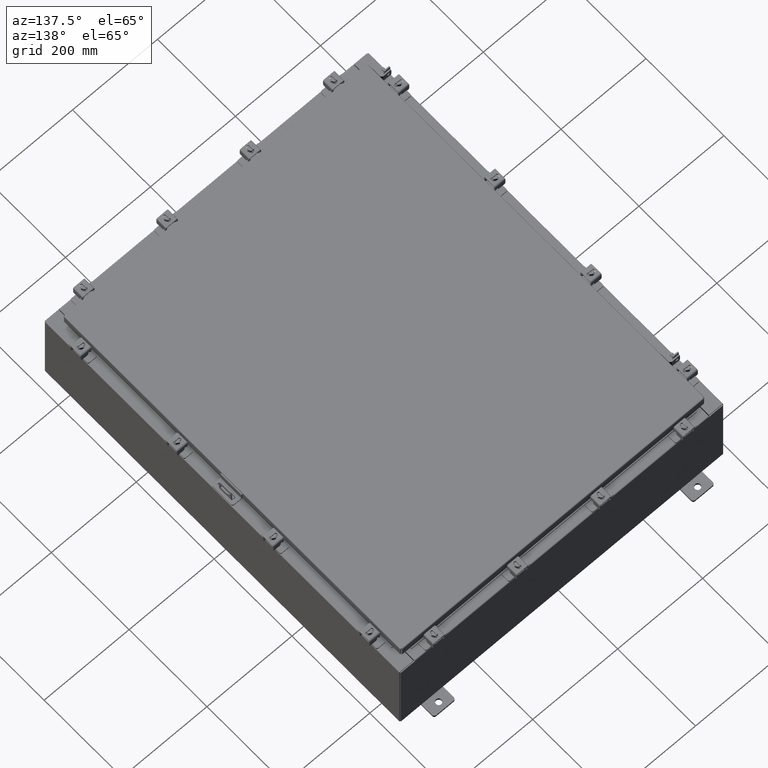
[diagram: clean part render]
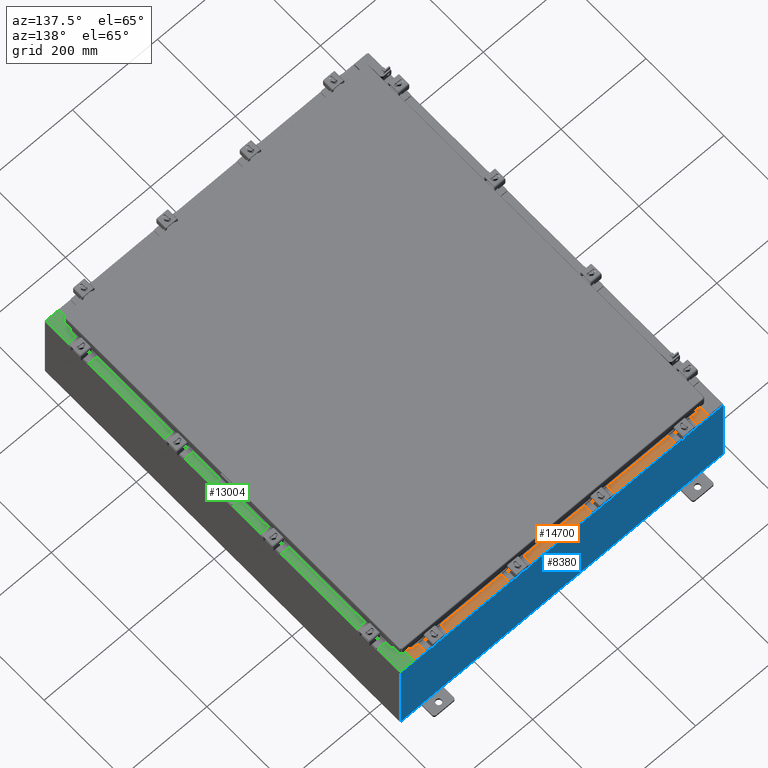
[diagram: same view with three faces highlighted in distinct colors, each labeled with its STEP entity id]
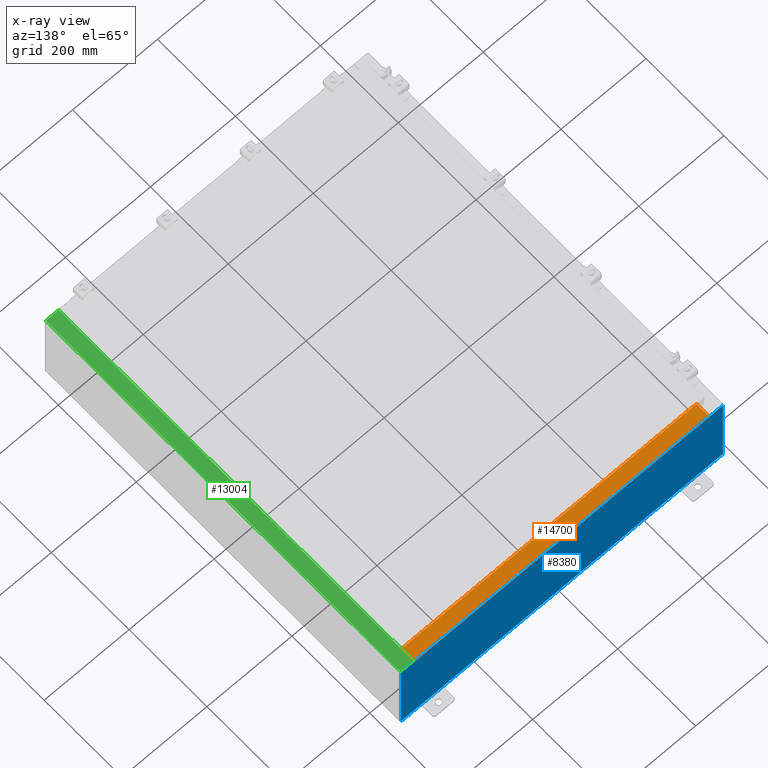
[diagram: x-ray of the same camera — body ghosted, the three highlighted faces saturated]
A machine part, auxiliary view with three faces highlighted in distinct colors.
The next image is the same camera in x-ray (body ghosted, the three faces saturated) — at least one of them is partly hidden behind the body in this view.
Their STEP definitions:

[orange] entity #14700 — the highlighted planar face has unit normal (0, 0, 1).
#205 = EDGE_CURVE ( 'NONE', #2254, #19719, #22961, .T. ) ;
#1309 = CARTESIAN_POINT ( 'NONE',  ( -13.63719999999999800, -0.08770000000000026400, 4.000000000000000900 ) ) ;
#1908 = CARTESIAN_POINT ( 'NONE',  ( -1.756834736719231400E-018, -0.08770000000000026400, 4.000000000000000900 ) ) ;
#2254 = VERTEX_POINT ( 'NONE', #20304 ) ;
#2320 = EDGE_CURVE ( 'NONE', #22832, #23010, #18137, .T. ) ;
#2524 = CARTESIAN_POINT ( 'NONE',  ( 13.63720000000000400, -1.287299999999999200, 4.000000000000002700 ) ) ;
#3086 = VECTOR ( 'NONE', #16081, 39.37007874015748100 ) ;
#4994 = VECTOR ( 'NONE', #15070, 39.37007874015748100 ) ;
#5975 = DIRECTION ( 'NONE',  ( -0.0000000000000000000, 1.000000000000000000, -3.566381192773190000E-015 ) ) ;
#6454 = EDGE_LOOP ( 'NONE', ( #22024, #14609, #7435, #14364 ) ) ;
#7395 = PLANE ( 'NONE',  #14647 ) ;
#7414 = CARTESIAN_POINT ( 'NONE',  ( 13.63720000000000400, -1.287299999999999200, 4.000000000000004400 ) ) ;
#7435 = ORIENTED_EDGE ( 'NONE', *, *, #2320, .F. ) ;
#7716 = EDGE_CURVE ( 'NONE', #23010, #2254, #17054, .T. ) ;
#7965 = CARTESIAN_POINT ( 'NONE',  ( 13.63720000000000400, -1.300299999999999300, 4.000000000000004400 ) ) ;
#9293 = DIRECTION ( 'NONE',  ( 0.0000000000000000000, -1.000000000000000000, 3.566381192773190000E-015 ) ) ;
#10015 = LINE ( 'NONE', #1908, #4994 ) ;
#12040 = VECTOR ( 'NONE', #19625, 39.37007874015748100 ) ;
#12883 = VECTOR ( 'NONE', #5975, 39.37007874015748100 ) ;
#14094 = CARTESIAN_POINT ( 'NONE',  ( -13.63719999999999800, -0.07470000000000015500, 4.000000000000000900 ) ) ;
#14364 = ORIENTED_EDGE ( 'NONE', *, *, #21053, .T. ) ;
#14609 = ORIENTED_EDGE ( 'NONE', *, *, #7716, .F. ) ;
#14647 = AXIS2_PLACEMENT_3D ( 'NONE', #18643, #20651, #9293 ) ;
#14700 = ADVANCED_FACE ( 'NONE', ( #21234 ), #7395, .T. ) ;
#15070 = DIRECTION ( 'NONE',  ( -1.000000000000000000, 2.003232330437526000E-017, -7.144290108027600900E-032 ) ) ;
#16081 = DIRECTION ( 'NONE',  ( -0.0000000000000000000, -1.000000000000000000, 3.566381192773190000E-015 ) ) ;
#17054 = LINE ( 'NONE', #2524, #12040 ) ;
#18137 = LINE ( 'NONE', #7965, #3086 ) ;
#18321 = CARTESIAN_POINT ( 'NONE',  ( 13.63720000000000400, -0.08770000000000026400, 4.000000000000000900 ) ) ;
#18643 = CARTESIAN_POINT ( 'NONE',  ( 0.0000000000000000000, 1.529834876451987200E-014, 4.000000000000000900 ) ) ;
#19625 = DIRECTION ( 'NONE',  ( -1.000000000000000000, 0.0000000000000000000, 0.0000000000000000000 ) ) ;
#19719 = VERTEX_POINT ( 'NONE', #1309 ) ;
#20304 = CARTESIAN_POINT ( 'NONE',  ( -13.63719999999999800, -1.287299999999999200, 4.000000000000004400 ) ) ;
#20651 = DIRECTION ( 'NONE',  ( 0.0000000000000000000, 3.566381192773190000E-015, 1.000000000000000000 ) ) ;
#21053 = EDGE_CURVE ( 'NONE', #22832, #19719, #10015, .T. ) ;
#21234 = FACE_OUTER_BOUND ( 'NONE', #6454, .T. ) ;
#22024 = ORIENTED_EDGE ( 'NONE', *, *, #205, .F. ) ;
#22832 = VERTEX_POINT ( 'NONE', #18321 ) ;
#22961 = LINE ( 'NONE', #14094, #12883 ) ;
#23010 = VERTEX_POINT ( 'NONE', #7414 ) ;

[blue] entity #8380 — the highlighted planar face has unit normal (0, -1, 0).
#523 = AXIS2_PLACEMENT_3D ( 'NONE', #18483, #20407, #9062 ) ;
#631 = VECTOR ( 'NONE', #6756, 39.37007874015748100 ) ;
#821 = VERTEX_POINT ( 'NONE', #20795 ) ;
#826 = LINE ( 'NONE', #8136, #20338 ) ;
#887 = EDGE_CURVE ( 'NONE', #20898, #1702, #18779, .T. ) ;
#943 = ORIENTED_EDGE ( 'NONE', *, *, #17899, .F. ) ;
#1151 = LINE ( 'NONE', #18752, #10583 ) ;
#1324 = EDGE_CURVE ( 'NONE', #5445, #13291, #20553, .T. ) ;
#1403 = LINE ( 'NONE', #3049, #11427 ) ;
#1702 = VERTEX_POINT ( 'NONE', #17704 ) ;
#2453 = VERTEX_POINT ( 'NONE', #21307 ) ;
#2896 = EDGE_CURVE ( 'NONE', #21639, #5610, #6292, .T. ) ;
#2999 = EDGE_CURVE ( 'NONE', #7224, #21639, #19604, .T. ) ;
#3032 = CARTESIAN_POINT ( 'NONE',  ( -14.92529999999999800, 0.0000000000000000000, 3.925300000000000500 ) ) ;
#3049 = CARTESIAN_POINT ( 'NONE',  ( -14.92529999999999800, 0.0000000000000000000, 3.925300000000000500 ) ) ;
#3102 = AXIS2_PLACEMENT_3D ( 'NONE', #16916, #5618, #18855 ) ;
#3135 = CARTESIAN_POINT ( 'NONE',  ( -14.92529999999999800, 0.0000000000000000000, -3.925299999999999600 ) ) ;
#3811 = LINE ( 'NONE', #3135, #22756 ) ;
#4109 = DIRECTION ( 'NONE',  ( -4.340572780400004900E-014, 0.0000000000000000000, -1.000000000000000000 ) ) ;
#4791 = EDGE_CURVE ( 'NONE', #20898, #2453, #12714, .T. ) ;
#4859 = AXIS2_PLACEMENT_3D ( 'NONE', #16407, #5113, #12059 ) ;
#4959 = VERTEX_POINT ( 'NONE', #21006 ) ;
#5096 = CARTESIAN_POINT ( 'NONE',  ( -13.63719999999999600, 0.0000000000000000000, 3.912300000000000100 ) ) ;
#5113 = DIRECTION ( 'NONE',  ( -0.0000000000000000000, 1.000000000000000000, -0.0000000000000000000 ) ) ;
#5246 = EDGE_CURVE ( 'NONE', #18063, #4959, #6224, .T. ) ;
#5445 = VERTEX_POINT ( 'NONE', #11037 ) ;
#5516 = VERTEX_POINT ( 'NONE', #13090 ) ;
#5610 = VERTEX_POINT ( 'NONE', #22862 ) ;
#5618 = DIRECTION ( 'NONE',  ( -0.0000000000000000000, 1.000000000000000000, -0.0000000000000000000 ) ) ;
#6224 = LINE ( 'NONE', #3032, #631 ) ;
#6292 = CIRCLE ( 'NONE', #4859, 0.01867499999999949400 ) ;
#6597 = ORIENTED_EDGE ( 'NONE', *, *, #15036, .T. ) ;
#6756 = DIRECTION ( 'NONE',  ( 1.000000000000000000, 0.0000000000000000000, 0.0000000000000000000 ) ) ;
#6978 = DIRECTION ( 'NONE',  ( 0.0000000000000000000, 0.0000000000000000000, 1.000000000000000000 ) ) ;
#7224 = VERTEX_POINT ( 'NONE', #5096 ) ;
#8136 = CARTESIAN_POINT ( 'NONE',  ( -13.63719999999999800, 0.0000000000000000000, 3.912300000000000100 ) ) ;
#8380 = ADVANCED_FACE ( 'NONE', ( #19127 ), #22218, .F. ) ;
#8506 = ORIENTED_EDGE ( 'NONE', *, *, #13327, .F. ) ;
#8700 = VECTOR ( 'NONE', #4109, 39.37007874015748100 ) ;
#8727 = DIRECTION ( 'NONE',  ( -1.000000000000000000, -0.0000000000000000000, -0.0000000000000000000 ) ) ;
#9062 = DIRECTION ( 'NONE',  ( 0.0000000000000000000, -0.0000000000000000000, -1.000000000000000000 ) ) ;
#9832 = ORIENTED_EDGE ( 'NONE', *, *, #4791, .T. ) ;
#10347 = ORIENTED_EDGE ( 'NONE', *, *, #14139, .T. ) ;
#10583 = VECTOR ( 'NONE', #16813, 39.37007874015748100 ) ;
#11037 = CARTESIAN_POINT ( 'NONE',  ( 13.63720000000000400, 0.0000000000000000000, 3.874949999999999200 ) ) ;
#11101 = CARTESIAN_POINT ( 'NONE',  ( -13.63719999999999600, 0.0000000000000000000, 3.874949999999999200 ) ) ;
#11427 = VECTOR ( 'NONE', #20087, 39.37007874015748100 ) ;
#11757 = DIRECTION ( 'NONE',  ( 0.0000000000000000000, 0.0000000000000000000, -1.000000000000000000 ) ) ;
#12059 = DIRECTION ( 'NONE',  ( 0.0000000000000000000, 0.0000000000000000000, -1.000000000000000000 ) ) ;
#12113 = CARTESIAN_POINT ( 'NONE',  ( 13.67454999999983300, 0.0000000000000000000, -5.933573842238779900E-013 ) ) ;
#12714 = LINE ( 'NONE', #23085, #17144 ) ;
#13090 = CARTESIAN_POINT ( 'NONE',  ( 14.92530000000000200, 0.0000000000000000000, -3.925299999999999600 ) ) ;
#13111 = ORIENTED_EDGE ( 'NONE', *, *, #5246, .T. ) ;
#13291 = VERTEX_POINT ( 'NONE', #14943 ) ;
#13327 = EDGE_CURVE ( 'NONE', #1702, #5445, #17695, .T. ) ;
#13818 = EDGE_CURVE ( 'NONE', #5516, #821, #3811, .T. ) ;
#14027 = CARTESIAN_POINT ( 'NONE',  ( -13.63719999999999600, 0.0000000000000000000, 0.0000000000000000000 ) ) ;
#14139 = EDGE_CURVE ( 'NONE', #2453, #5516, #1151, .T. ) ;
#14168 = DIRECTION ( 'NONE',  ( 0.0000000000000000000, 0.0000000000000000000, 1.000000000000000000 ) ) ;
#14543 = VECTOR ( 'NONE', #11757, 39.37007874015748100 ) ;
#14573 = CARTESIAN_POINT ( 'NONE',  ( 13.67455000000000400, 0.0000000000000000000, 3.925300000000000500 ) ) ;
#14943 = CARTESIAN_POINT ( 'NONE',  ( 13.63720000000000400, 0.0000000000000000000, 3.912300000000000100 ) ) ;
#15036 = EDGE_CURVE ( 'NONE', #7224, #13291, #826, .T. ) ;
#15473 = VECTOR ( 'NONE', #14168, 39.37007874015748100 ) ;
#15940 = ORIENTED_EDGE ( 'NONE', *, *, #13818, .T. ) ;
#16407 = CARTESIAN_POINT ( 'NONE',  ( -13.65587499999999600, 0.0000000000000000000, 3.874949999999999200 ) ) ;
#16411 = CARTESIAN_POINT ( 'NONE',  ( 13.63720000000000400, 0.0000000000000000000, 0.0000000000000000000 ) ) ;
#16813 = DIRECTION ( 'NONE',  ( 0.0000000000000000000, 0.0000000000000000000, -1.000000000000000000 ) ) ;
#16916 = CARTESIAN_POINT ( 'NONE',  ( 13.65587500000000200, 0.0000000000000000000, 3.874949999999999200 ) ) ;
#17144 = VECTOR ( 'NONE', #23248, 39.37007874015748100 ) ;
#17214 = VECTOR ( 'NONE', #6978, 39.37007874015748100 ) ;
#17432 = ORIENTED_EDGE ( 'NONE', *, *, #1324, .F. ) ;
#17609 = DIRECTION ( 'NONE',  ( 1.000000000000000000, 0.0000000000000000000, 0.0000000000000000000 ) ) ;
#17695 = CIRCLE ( 'NONE', #3102, 0.01867499999999949400 ) ;
#17704 = CARTESIAN_POINT ( 'NONE',  ( 13.67455000000000200, 0.0000000000000000000, 3.874949999999999200 ) ) ;
#17899 = EDGE_CURVE ( 'NONE', #5610, #4959, #24045, .T. ) ;
#18063 = VERTEX_POINT ( 'NONE', #20634 ) ;
#18286 = CARTESIAN_POINT ( 'NONE',  ( -13.67454999999999500, 0.0000000000000000000, 0.0000000000000000000 ) ) ;
#18483 = CARTESIAN_POINT ( 'NONE',  ( 0.0000000000000000000, 0.0000000000000000000, 0.0000000000000000000 ) ) ;
#18752 = CARTESIAN_POINT ( 'NONE',  ( 14.92530000000000200, 0.0000000000000000000, 3.925300000000000500 ) ) ;
#18779 = LINE ( 'NONE', #12113, #8700 ) ;
#18785 = ORIENTED_EDGE ( 'NONE', *, *, #22808, .T. ) ;
#18855 = DIRECTION ( 'NONE',  ( 0.0000000000000000000, 0.0000000000000000000, -1.000000000000000000 ) ) ;
#19127 = FACE_OUTER_BOUND ( 'NONE', #19850, .T. ) ;
#19604 = LINE ( 'NONE', #14027, #14543 ) ;
#19850 = EDGE_LOOP ( 'NONE', ( #943, #22386, #22129, #6597, #17432, #8506, #23545, #9832, #10347, #15940, #18785, #13111 ) ) ;
#20087 = DIRECTION ( 'NONE',  ( -0.0000000000000000000, -0.0000000000000000000, 1.000000000000000000 ) ) ;
#20338 = VECTOR ( 'NONE', #17609, 39.37007874015748100 ) ;
#20407 = DIRECTION ( 'NONE',  ( 0.0000000000000000000, -1.000000000000000000, 0.0000000000000000000 ) ) ;
#20553 = LINE ( 'NONE', #16411, #15473 ) ;
#20634 = CARTESIAN_POINT ( 'NONE',  ( -14.92529999999999800, 0.0000000000000000000, 3.925300000000000500 ) ) ;
#20795 = CARTESIAN_POINT ( 'NONE',  ( -14.92529999999999800, 0.0000000000000000000, -3.925299999999999600 ) ) ;
#20898 = VERTEX_POINT ( 'NONE', #14573 ) ;
#21006 = CARTESIAN_POINT ( 'NONE',  ( -13.67454999999999500, 0.0000000000000000000, 3.925300000000000500 ) ) ;
#21307 = CARTESIAN_POINT ( 'NONE',  ( 14.92530000000000200, 0.0000000000000000000, 3.925300000000000500 ) ) ;
#21639 = VERTEX_POINT ( 'NONE', #11101 ) ;
#22129 = ORIENTED_EDGE ( 'NONE', *, *, #2999, .F. ) ;
#22218 = PLANE ( 'NONE',  #523 ) ;
#22386 = ORIENTED_EDGE ( 'NONE', *, *, #2896, .F. ) ;
#22756 = VECTOR ( 'NONE', #8727, 39.37007874015748100 ) ;
#22808 = EDGE_CURVE ( 'NONE', #821, #18063, #1403, .T. ) ;
#22862 = CARTESIAN_POINT ( 'NONE',  ( -13.67454999999999500, 0.0000000000000000000, 3.874949999999999200 ) ) ;
#23085 = CARTESIAN_POINT ( 'NONE',  ( -14.92529999999999800, 0.0000000000000000000, 3.925300000000000500 ) ) ;
#23248 = DIRECTION ( 'NONE',  ( 1.000000000000000000, 0.0000000000000000000, 0.0000000000000000000 ) ) ;
#23545 = ORIENTED_EDGE ( 'NONE', *, *, #887, .F. ) ;
#24045 = LINE ( 'NONE', #18286, #17214 ) ;

[green] entity #13004 — the highlighted planar face has unit normal (-0, 0, -1).
#736 = LINE ( 'NONE', #23029, #10757 ) ;
#860 = LINE ( 'NONE', #14488, #5262 ) ;
#902 = DIRECTION ( 'NONE',  ( -2.156899250920150100E-031, -1.000000000000000000, 1.346156861557936900E-045 ) ) ;
#915 = CARTESIAN_POINT ( 'NONE',  ( 14.91230000000002700, -17.92530000000000000, 7.925300000000000000 ) ) ;
#980 = ORIENTED_EDGE ( 'NONE', *, *, #1653, .T. ) ;
#1120 = VECTOR ( 'NONE', #1962, 39.37007874015748100 ) ;
#1415 = DIRECTION ( 'NONE',  ( 1.000000000000000000, 0.0000000000000000000, 0.0000000000000000000 ) ) ;
#1453 = CARTESIAN_POINT ( 'NONE',  ( 13.69970000000002800, -16.63110000000000400, 7.925300000000008900 ) ) ;
#1653 = EDGE_CURVE ( 'NONE', #24290, #2774, #5480, .T. ) ;
#1962 = DIRECTION ( 'NONE',  ( -1.000000000000000000, 0.0000000000000000000, 0.0000000000000000000 ) ) ;
#2454 = EDGE_CURVE ( 'NONE', #6882, #14379, #4524, .T. ) ;
#2649 = DIRECTION ( 'NONE',  ( -1.000000000000000000, 0.0000000000000000000, 6.241167087353087800E-015 ) ) ;
#2770 = ORIENTED_EDGE ( 'NONE', *, *, #15350, .F. ) ;
#2774 = VERTEX_POINT ( 'NONE', #23398 ) ;
#3251 = LINE ( 'NONE', #9915, #9453 ) ;
#3256 = DIRECTION ( 'NONE',  ( 1.000000000000000000, 4.340572780399910900E-014, 0.0000000000000000000 ) ) ;
#3267 = DIRECTION ( 'NONE',  ( 6.241167087353086200E-015, 0.0000000000000000000, 1.000000000000000000 ) ) ;
#4381 = CARTESIAN_POINT ( 'NONE',  ( 4.972393517345230000E-014, 0.0000000000000000000, 7.925300000000092400 ) ) ;
#4524 = LINE ( 'NONE', #18546, #24076 ) ;
#4527 = CARTESIAN_POINT ( 'NONE',  ( 4.972393517345230000E-014, 17.92530000000000000, 7.925300000000092400 ) ) ;
#4787 = EDGE_LOOP ( 'NONE', ( #2770, #980, #7003, #22370, #7844, #8167, #6544, #20679, #24262, #12823, #9192, #15300 ) ) ;
#5262 = VECTOR ( 'NONE', #1415, 39.37007874015748100 ) ;
#5480 = LINE ( 'NONE', #16775, #19980 ) ;
#5599 = CARTESIAN_POINT ( 'NONE',  ( 13.69970000000002800, 17.92530000000000000, 7.925300000000007100 ) ) ;
#5979 = CARTESIAN_POINT ( 'NONE',  ( 4.972393517345230000E-014, -17.92530000000000000, 7.925300000000092400 ) ) ;
#6068 = DIRECTION ( 'NONE',  ( 1.000000000000000000, 2.717614574405843200E-032, -6.241167087353087800E-015 ) ) ;
#6105 = DIRECTION ( 'NONE',  ( -0.0000000000000000000, 1.000000000000000000, -0.0000000000000000000 ) ) ;
#6264 = CARTESIAN_POINT ( 'NONE',  ( 13.71270000000003000, 16.59375000000000000, 7.925300000000008900 ) ) ;
#6369 = DIRECTION ( 'NONE',  ( -1.000000000000000000, 0.0000000000000000000, 6.241167087353086200E-015 ) ) ;
#6466 = CARTESIAN_POINT ( 'NONE',  ( 13.75005000000002800, -16.59375000000000000, 7.925300000000006200 ) ) ;
#6544 = ORIENTED_EDGE ( 'NONE', *, *, #24422, .F. ) ;
#6882 = VERTEX_POINT ( 'NONE', #7933 ) ;
#7003 = ORIENTED_EDGE ( 'NONE', *, *, #14924, .T. ) ;
#7237 = EDGE_CURVE ( 'NONE', #20618, #10777, #860, .T. ) ;
#7608 = VECTOR ( 'NONE', #6068, 39.37007874015748100 ) ;
#7758 = DIRECTION ( 'NONE',  ( 6.241167087353086200E-015, 0.0000000000000000000, 1.000000000000000000 ) ) ;
#7844 = ORIENTED_EDGE ( 'NONE', *, *, #15748, .T. ) ;
#7933 = CARTESIAN_POINT ( 'NONE',  ( 14.91230000000002700, 17.92530000000000000, 7.925300000000000000 ) ) ;
#8060 = EDGE_CURVE ( 'NONE', #8819, #13762, #21217, .T. ) ;
#8167 = ORIENTED_EDGE ( 'NONE', *, *, #12332, .T. ) ;
#8819 = VERTEX_POINT ( 'NONE', #6466 ) ;
#9108 = AXIS2_PLACEMENT_3D ( 'NONE', #14550, #3267, #16457 ) ;
#9192 = ORIENTED_EDGE ( 'NONE', *, *, #8060, .F. ) ;
#9222 = VECTOR ( 'NONE', #902, 39.37007874015748100 ) ;
#9453 = VECTOR ( 'NONE', #6105, 39.37007874015748100 ) ;
#9896 = AXIS2_PLACEMENT_3D ( 'NONE', #4381, #17675, #6369 ) ;
#9915 = CARTESIAN_POINT ( 'NONE',  ( 13.71270000000003000, -16.59375000000000000, 7.925300000000008900 ) ) ;
#10757 = VECTOR ( 'NONE', #11610, 39.37007874015748100 ) ;
#10777 = VERTEX_POINT ( 'NONE', #23760 ) ;
#11115 = LINE ( 'NONE', #4527, #20598 ) ;
#11335 = CARTESIAN_POINT ( 'NONE',  ( 13.75005000000002800, -16.59375000000000000, 7.925300000000008900 ) ) ;
#11467 = VERTEX_POINT ( 'NONE', #14844 ) ;
#11610 = DIRECTION ( 'NONE',  ( -1.000000000000000000, 4.340572780399910900E-014, 0.0000000000000000000 ) ) ;
#11730 = CARTESIAN_POINT ( 'NONE',  ( 13.69970000000002800, 16.63110000000000400, 7.925300000000007100 ) ) ;
#12332 = EDGE_CURVE ( 'NONE', #19365, #20568, #13633, .T. ) ;
#12453 = CIRCLE ( 'NONE', #18592, 0.01867499999999949400 ) ;
#12625 = DIRECTION ( 'NONE',  ( -0.0000000000000000000, -1.000000000000000000, -0.0000000000000000000 ) ) ;
#12823 = ORIENTED_EDGE ( 'NONE', *, *, #20580, .F. ) ;
#13004 = ADVANCED_FACE ( 'NONE', ( #23080 ), #15778, .F. ) ;
#13330 = CARTESIAN_POINT ( 'NONE',  ( 13.69970000000002800, -16.63110000000000400, 7.925300000000007100 ) ) ;
#13542 = CARTESIAN_POINT ( 'NONE',  ( 13.75005000000002800, 16.63110000000000000, 7.925300000000006200 ) ) ;
#13576 = CIRCLE ( 'NONE', #9108, 0.01867499999999949400 ) ;
#13633 = LINE ( 'NONE', #23531, #9222 ) ;
#13762 = VERTEX_POINT ( 'NONE', #23795 ) ;
#13763 = VECTOR ( 'NONE', #3256, 39.37007874015748100 ) ;
#14379 = VERTEX_POINT ( 'NONE', #915 ) ;
#14488 = CARTESIAN_POINT ( 'NONE',  ( 13.71270000000003000, 16.59375000000000000, 7.925300000000008900 ) ) ;
#14550 = CARTESIAN_POINT ( 'NONE',  ( 13.75005000000002800, 16.61242500000000200, 7.925300000000008900 ) ) ;
#14844 = CARTESIAN_POINT ( 'NONE',  ( 13.75005000000002800, -16.63110000000000000, 7.925300000000006200 ) ) ;
#14924 = EDGE_CURVE ( 'NONE', #2774, #14379, #23290, .T. ) ;
#15300 = ORIENTED_EDGE ( 'NONE', *, *, #18864, .F. ) ;
#15350 = EDGE_CURVE ( 'NONE', #24290, #11467, #24474, .T. ) ;
#15748 = EDGE_CURVE ( 'NONE', #6882, #19365, #11115, .T. ) ;
#15778 = PLANE ( 'NONE',  #9896 ) ;
#16457 = DIRECTION ( 'NONE',  ( 1.000000000000000000, 0.0000000000000000000, 0.0000000000000000000 ) ) ;
#16775 = CARTESIAN_POINT ( 'NONE',  ( 13.69970000000002800, 0.0000000000000000000, 7.925300000000007100 ) ) ;
#17675 = DIRECTION ( 'NONE',  ( -6.241167087353086200E-015, 0.0000000000000000000, -1.000000000000000000 ) ) ;
#17931 = DIRECTION ( 'NONE',  ( -2.156899250920150100E-031, -1.000000000000000000, 1.346156861557936900E-045 ) ) ;
#18262 = VERTEX_POINT ( 'NONE', #13542 ) ;
#18546 = CARTESIAN_POINT ( 'NONE',  ( 14.91230000000002700, -17.92530000000000000, 7.925300000000000000 ) ) ;
#18592 = AXIS2_PLACEMENT_3D ( 'NONE', #19097, #7758, #21007 ) ;
#18864 = EDGE_CURVE ( 'NONE', #11467, #8819, #12453, .T. ) ;
#19097 = CARTESIAN_POINT ( 'NONE',  ( 13.75005000000002800, -16.61242500000000200, 7.925300000000008900 ) ) ;
#19365 = VERTEX_POINT ( 'NONE', #5599 ) ;
#19728 = EDGE_CURVE ( 'NONE', #10777, #18262, #13576, .T. ) ;
#19980 = VECTOR ( 'NONE', #17931, 39.37007874015748100 ) ;
#20568 = VERTEX_POINT ( 'NONE', #11730 ) ;
#20580 = EDGE_CURVE ( 'NONE', #13762, #20618, #3251, .T. ) ;
#20598 = VECTOR ( 'NONE', #2649, 39.37007874015748100 ) ;
#20618 = VERTEX_POINT ( 'NONE', #6264 ) ;
#20679 = ORIENTED_EDGE ( 'NONE', *, *, #19728, .F. ) ;
#21007 = DIRECTION ( 'NONE',  ( 1.000000000000000000, 0.0000000000000000000, 0.0000000000000000000 ) ) ;
#21217 = LINE ( 'NONE', #11335, #1120 ) ;
#22370 = ORIENTED_EDGE ( 'NONE', *, *, #2454, .F. ) ;
#23029 = CARTESIAN_POINT ( 'NONE',  ( 13.75005000000002800, 16.63110000000000000, 7.925300000000008900 ) ) ;
#23080 = FACE_OUTER_BOUND ( 'NONE', #4787, .T. ) ;
#23290 = LINE ( 'NONE', #5979, #7608 ) ;
#23398 = CARTESIAN_POINT ( 'NONE',  ( 13.69970000000002800, -17.92530000000000000, 7.925300000000007100 ) ) ;
#23531 = CARTESIAN_POINT ( 'NONE',  ( 13.69970000000002800, 0.0000000000000000000, 7.925300000000007100 ) ) ;
#23760 = CARTESIAN_POINT ( 'NONE',  ( 13.75005000000002800, 16.59375000000000000, 7.925300000000006200 ) ) ;
#23795 = CARTESIAN_POINT ( 'NONE',  ( 13.71270000000003000, -16.59375000000000000, 7.925300000000008900 ) ) ;
#24076 = VECTOR ( 'NONE', #12625, 39.37007874015748100 ) ;
#24262 = ORIENTED_EDGE ( 'NONE', *, *, #7237, .F. ) ;
#24290 = VERTEX_POINT ( 'NONE', #13330 ) ;
#24422 = EDGE_CURVE ( 'NONE', #18262, #20568, #736, .T. ) ;
#24474 = LINE ( 'NONE', #1453, #13763 ) ;